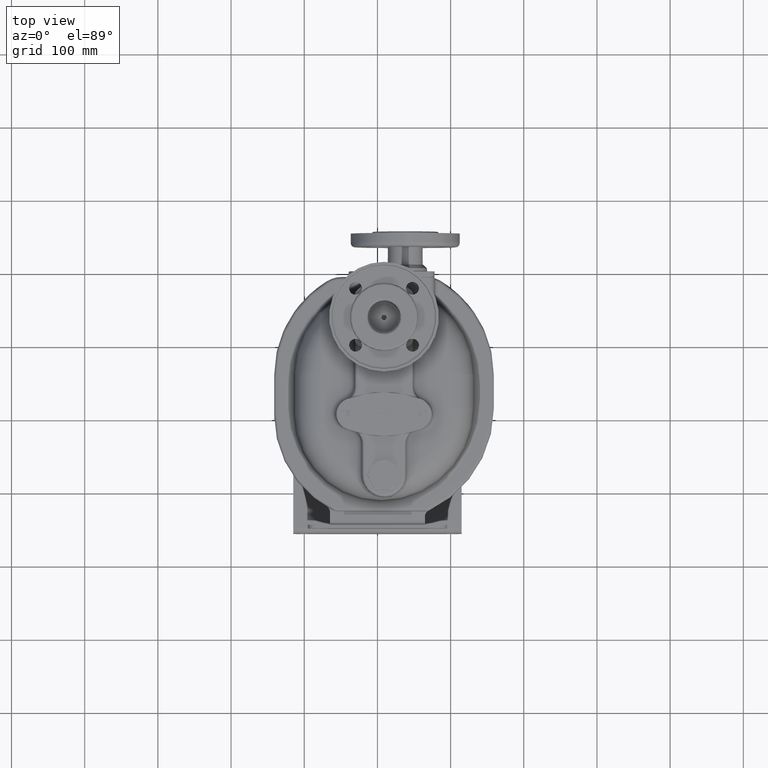
[diagram: clean part render]
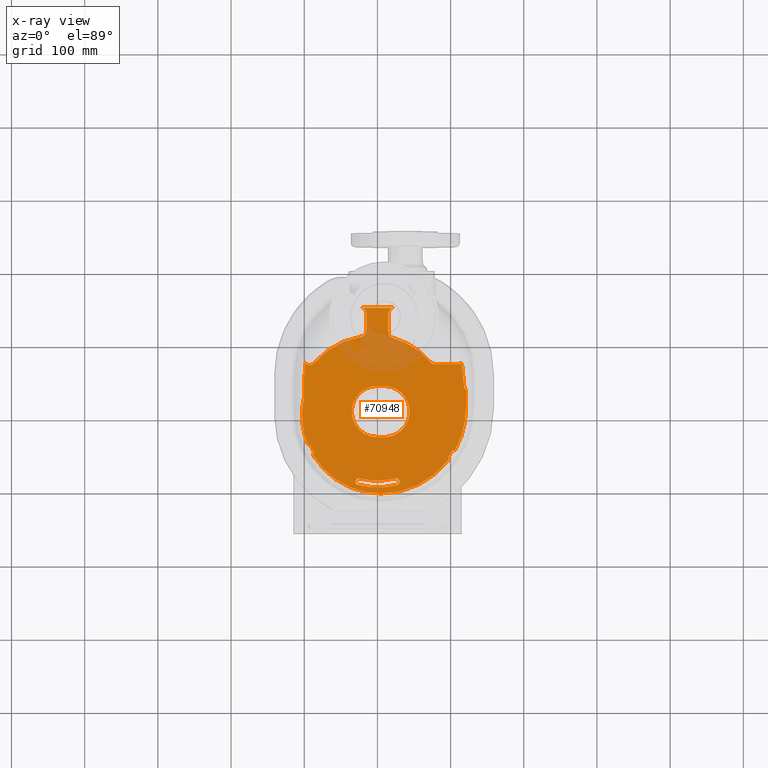
[diagram: x-ray — body ghosted, one internal face saturated and labeled with its STEP entity id]
A machine part, top view, then the same camera in x-ray: the body is ghosted and one INTERNAL B-rep face — a face not visible from any outside direction — is saturated and labeled: STEP entity #70948.
In plain terms, the highlighted planar face has unit normal (0, 0, -1).
Its self-contained STEP definition (entity closure, byte-faithful):
#12166=DIRECTION('',(-1.E0,0.E0,0.E0));
#12167=VECTOR('',#12166,4.6E1);
#12168=CARTESIAN_POINT('',(2.3E1,1.42E2,-1.5E0));
#12169=LINE('',#12168,#12167);
#12273=CARTESIAN_POINT('',(-9.273937336897E1,7.156617505470E1,-1.5E0));
#12274=DIRECTION('',(0.E0,0.E0,1.E0));
#12275=DIRECTION('',(-7.701488054631E-1,-6.378642625542E-1,0.E0));
#12276=AXIS2_PLACEMENT_3D('',#12273,#12274,#12275);
#12278=CARTESIAN_POINT('',(-4.5E0,-4.5E0,-1.5E0));
#12279=DIRECTION('',(0.E0,0.E0,-1.E0));
#12280=DIRECTION('',(-7.574195138967E-1,6.529285412420E-1,0.E0));
#12281=AXIS2_PLACEMENT_3D('',#12278,#12279,#12280);
#12283=CARTESIAN_POINT('',(-2.3E1,1.105217370761E2,-1.5E0));
#12284=DIRECTION('',(0.E0,0.E0,1.E0));
#12285=DIRECTION('',(1.587982832618E-1,-9.873110478634E-1,0.E0));
#12286=AXIS2_PLACEMENT_3D('',#12283,#12284,#12285);
#12288=DIRECTION('',(0.E0,1.E0,0.E0));
#12289=VECTOR('',#12288,2.347826292391E1);
#12290=CARTESIAN_POINT('',(-1.5E1,1.105217370761E2,-1.5E0));
#12291=LINE('',#12290,#12289);
#12292=CARTESIAN_POINT('',(-2.3E1,1.34E2,-1.5E0));
#12293=DIRECTION('',(0.E0,0.E0,1.E0));
#12294=DIRECTION('',(1.E0,-1.065814103640E-14,0.E0));
#12295=AXIS2_PLACEMENT_3D('',#12292,#12293,#12294);
#12297=CARTESIAN_POINT('',(2.3E1,1.34E2,-1.5E0));
#12298=DIRECTION('',(0.E0,0.E0,1.E0));
#12299=DIRECTION('',(0.E0,1.E0,0.E0));
#12300=AXIS2_PLACEMENT_3D('',#12297,#12298,#12299);
#12302=DIRECTION('',(0.E0,-1.E0,0.E0));
#12303=VECTOR('',#12302,2.557695154587E1);
#12304=CARTESIAN_POINT('',(1.5E1,1.34E2,-1.5E0));
#12305=LINE('',#12304,#12303);
#12306=CARTESIAN_POINT('',(2.3E1,1.084230484541E2,-1.5E0));
#12307=DIRECTION('',(0.E0,0.E0,1.E0));
#12308=DIRECTION('',(-1.E0,-1.953992523340E-14,0.E0));
#12309=AXIS2_PLACEMENT_3D('',#12306,#12307,#12308);
#12311=CARTESIAN_POINT('',(-4.5E0,4.5E0,-1.5E0));
#12312=DIRECTION('',(0.E0,0.E0,-1.E0));
#12313=DIRECTION('',(2.558139534884E-1,9.667260321315E-1,0.E0));
#12314=AXIS2_PLACEMENT_3D('',#12311,#12312,#12313);
#12316=CARTESIAN_POINT('',(7.834926070883E1,7.3E1,-1.5E0));
#12317=DIRECTION('',(0.E0,0.E0,1.E0));
#12318=DIRECTION('',(-7.706907972915E-1,-6.372093023256E-1,0.E0));
#12319=AXIS2_PLACEMENT_3D('',#12316,#12317,#12318);
#12321=DIRECTION('',(1.E0,0.E0,0.E0));
#12322=VECTOR('',#12321,3.207558831743E1);
#12323=CARTESIAN_POINT('',(7.834926070883E1,6.5E1,-1.5E0));
#12324=LINE('',#12323,#12322);
#12325=CARTESIAN_POINT('',(1.104248490263E2,7.3E1,-1.5E0));
#12326=DIRECTION('',(0.E0,0.E0,1.E0));
#12327=DIRECTION('',(0.E0,-1.E0,0.E0));
#12328=AXIS2_PLACEMENT_3D('',#12325,#12326,#12327);
#12330=CARTESIAN_POINT('',(9.E0,5.E1,-1.5E0));
#12331=DIRECTION('',(0.E0,0.E0,1.E0));
#12332=DIRECTION('',(9.752389329448E-1,2.211538461538E-1,0.E0));
#12333=AXIS2_PLACEMENT_3D('',#12330,#12331,#12332);
#12335=CARTESIAN_POINT('',(2.55E1,-9.565955258102E1,-1.5E0));
#12336=DIRECTION('',(0.E0,0.E0,-1.E0));
#12337=DIRECTION('',(-2.575757575753E-1,9.662581068791E-1,0.E0));
#12338=AXIS2_PLACEMENT_3D('',#12335,#12336,#12337);
#12340=CARTESIAN_POINT('',(0.E0,0.E0,-1.5E0));
#12341=DIRECTION('',(0.E0,0.E0,-1.E0));
#12342=DIRECTION('',(2.575757575758E-1,-9.662581068789E-1,0.E0));
#12343=AXIS2_PLACEMENT_3D('',#12340,#12341,#12342);
#12345=CARTESIAN_POINT('',(-2.55E1,-9.565955258102E1,-1.5E0));
#12346=DIRECTION('',(0.E0,0.E0,-1.E0));
#12347=DIRECTION('',(-2.575757575757E-1,-9.662581068789E-1,0.E0));
#12348=AXIS2_PLACEMENT_3D('',#12345,#12346,#12347);
#12350=CARTESIAN_POINT('',(0.E0,0.E0,-1.5E0));
#12351=DIRECTION('',(0.E0,0.E0,-1.E0));
#12352=DIRECTION('',(2.575757575758E-1,-9.662581068789E-1,0.E0));
#12353=AXIS2_PLACEMENT_3D('',#12350,#12351,#12352);
#12355=DIRECTION('',(0.E0,-1.E0,0.E0));
#12356=VECTOR('',#12355,2.4E1);
#12357=CARTESIAN_POINT('',(1.21E2,2.85E1,-1.5E0));
#12358=LINE('',#12357,#12356);
#12371=CARTESIAN_POINT('',(1.17E2,2.85E1,-1.5E0));
#12372=DIRECTION('',(0.E0,0.E0,-1.E0));
#12373=DIRECTION('',(4.484378720802E-1,8.938140046364E-1,0.E0));
#12374=AXIS2_PLACEMENT_3D('',#12371,#12372,#12373);
#12384=DIRECTION('',(-5.759201016436E-2,9.983402027191E-1,0.E0));
#12385=VECTOR('',#12384,3.603556230667E1);
#12386=CARTESIAN_POINT('',(1.187937514883E2,3.207525601855E1,-1.5E0));
#12387=LINE('',#12386,#12385);
#12388=CARTESIAN_POINT('',(1.104328946732E2,7.3E1,-1.5E0));
#12389=DIRECTION('',(0.E0,0.E0,-1.E0));
#12390=DIRECTION('',(9.640516425202E-1,2.657149422862E-1,0.E0));
#12391=AXIS2_PLACEMENT_3D('',#12388,#12389,#12390);
#22625=DIRECTION('',(-3.157217288341E-2,-9.995014746860E-1,0.E0));
#22626=VECTOR('',#22625,4.866389729133E1);
#22627=CARTESIAN_POINT('',(-9.890056381267E1,6.646326095426E1,-1.5E0));
#22628=LINE('',#22627,#22626);
#22629=CARTESIAN_POINT('',(-4.5E0,-4.5E0,-1.5E0));
#22630=DIRECTION('',(0.E0,0.E0,-1.E0));
#22631=DIRECTION('',(-1.E0,0.E0,0.E0));
#22632=AXIS2_PLACEMENT_3D('',#22629,#22630,#22631);
#22638=CARTESIAN_POINT('',(4.5E0,-4.5E0,-1.5E0));
#22639=DIRECTION('',(0.E0,0.E0,-1.E0));
#22640=DIRECTION('',(0.E0,-1.E0,0.E0));
#22641=AXIS2_PLACEMENT_3D('',#22638,#22639,#22640);
#22652=CARTESIAN_POINT('',(4.5E0,-4.5E0,-1.5E0));
#22653=DIRECTION('',(0.E0,0.E0,-1.E0));
#22654=DIRECTION('',(-9.298754007984E-1,-3.678746240095E-1,0.E0));
#22655=AXIS2_PLACEMENT_3D('',#22652,#22653,#22654);
#22670=CARTESIAN_POINT('',(4.5E0,4.5E0,-1.5E0));
#22671=DIRECTION('',(0.E0,0.E0,-1.E0));
#22672=DIRECTION('',(1.E0,0.E0,0.E0));
#22673=AXIS2_PLACEMENT_3D('',#22670,#22671,#22672);
#22688=CARTESIAN_POINT('',(4.5E0,4.5E0,-1.5E0));
#22689=DIRECTION('',(0.E0,0.E0,-1.E0));
#22690=DIRECTION('',(7.908192518570E-1,-6.120497617779E-1,0.E0));
#22691=AXIS2_PLACEMENT_3D('',#22688,#22689,#22690);
#22716=CARTESIAN_POINT('',(9.346716583391E1,-6.435559820001E1,-1.5E0));
#22717=DIRECTION('',(0.E0,0.E0,1.E0));
#22718=DIRECTION('',(7.908192518570E-1,-6.120497617779E-1,0.E0));
#22719=AXIS2_PLACEMENT_3D('',#22716,#22717,#22718);
#22730=DIRECTION('',(5.E-1,8.660254037844E-1,0.E0));
#22731=VECTOR('',#22730,1.068662492356E1);
#22732=CARTESIAN_POINT('',(9.694528306250E1,-6.238007281567E1,-1.5E0));
#22733=LINE('',#22732,#22731);
#22734=CARTESIAN_POINT('',(1.033229688702E2,-4.926123904526E1,-1.5E0));
#22735=DIRECTION('',(0.E0,0.E0,-1.E0));
#22736=DIRECTION('',(8.784263899572E-1,-4.778776804023E-1,0.E0));
#22737=AXIS2_PLACEMENT_3D('',#22734,#22735,#22736);
#22752=CARTESIAN_POINT('',(-9.174210398263E1,-4.257502358498E1,-1.5E0));
#22753=DIRECTION('',(0.E0,0.E0,1.E0));
#22754=DIRECTION('',(-9.298754007983E-1,-3.678746240095E-1,0.E0));
#22755=AXIS2_PLACEMENT_3D('',#22752,#22753,#22754);
#22766=DIRECTION('',(5.E-1,-8.660254037844E-1,0.E0));
#22767=VECTOR('',#22766,1.074188831094E1);
#22768=CARTESIAN_POINT('',(-9.187546393754E1,-4.657279985716E1,-1.5E0));
#22769=LINE('',#22768,#22767);
#22770=CARTESIAN_POINT('',(-8.367312904622E1,-5.870100842419E1,-1.5E0));
#22771=DIRECTION('',(0.E0,0.E0,-1.E0));
#22772=DIRECTION('',(-8.519142903016E-1,-5.236812408135E-1,0.E0));
#22773=AXIS2_PLACEMENT_3D('',#22770,#22771,#22772);
#23139=DIRECTION('',(1.E0,0.E0,0.E0));
#23140=VECTOR('',#23139,9.E0);
#23141=CARTESIAN_POINT('',(0.E0,3.496862696660E1,-1.5E0));
#23142=LINE('',#23141,#23140);
#23148=CARTESIAN_POINT('',(9.E0,0.E0,-1.5E0));
#23149=DIRECTION('',(0.E0,0.E0,-1.E0));
#23150=DIRECTION('',(-1.371561849129E-14,1.E0,0.E0));
#23151=AXIS2_PLACEMENT_3D('',#23148,#23149,#23150);
#23158=CARTESIAN_POINT('',(9.E0,1.05E2,-1.5E0));
#23159=DIRECTION('',(0.E0,0.E0,-1.E0));
#23160=DIRECTION('',(-1.844017865707E-14,-1.E0,0.E0));
#23161=AXIS2_PLACEMENT_3D('',#23158,#23159,#23160);
#23173=CARTESIAN_POINT('',(-5.906154188144E0,-1.910804392673E1,-1.5E0));
#23174=DIRECTION('',(0.E0,0.E0,1.E0));
#23175=DIRECTION('',(-2.953077094072E-1,-9.554021963365E-1,0.E0));
#23176=AXIS2_PLACEMENT_3D('',#23173,#23174,#23175);
#23183=CARTESIAN_POINT('',(0.E0,0.E0,-1.5E0));
#23184=DIRECTION('',(0.E0,0.E0,-1.E0));
#23185=DIRECTION('',(-2.953077094072E-1,-9.554021963365E-1,0.E0));
#23186=AXIS2_PLACEMENT_3D('',#23183,#23184,#23185);
#47932=CARTESIAN_POINT('',(1.104248490263E2,6.5E1,-1.5E0));
#47933=CARTESIAN_POINT('',(1.182267604898E2,7.476923076923E1,-1.5E0));
#47934=VERTEX_POINT('',#47932);
#47935=VERTEX_POINT('',#47933);
#47936=CARTESIAN_POINT('',(7.834926070883E1,6.5E1,-1.5E0));
#47937=VERTEX_POINT('',#47936);
#47938=CARTESIAN_POINT('',(7.218373433050E1,6.790232558140E1,-1.5E0));
#47939=VERTEX_POINT('',#47938);
#47940=CARTESIAN_POINT('',(1.5E1,1.084230484541E2,-1.5E0));
#47941=CARTESIAN_POINT('',(2.095348837209E1,1.006892401971E2,-1.5E0));
#47942=VERTEX_POINT('',#47940);
#47943=VERTEX_POINT('',#47941);
#47944=CARTESIAN_POINT('',(1.5E1,1.34E2,-1.5E0));
#47945=VERTEX_POINT('',#47944);
#47946=CARTESIAN_POINT('',(-1.5E1,1.105217370761E2,-1.5E0));
#47947=CARTESIAN_POINT('',(-1.5E1,1.34E2,-1.5E0));
#47948=VERTEX_POINT('',#47946);
#47949=VERTEX_POINT('',#47947);
#47950=CARTESIAN_POINT('',(-2.172961373391E1,1.026232486932E2,-1.5E0));
#47951=VERTEX_POINT('',#47950);
#48030=CARTESIAN_POINT('',(2.434090909091E1,-9.131139110006E1,-1.5E0));
#48032=VERTEX_POINT('',#48030);
#48034=CARTESIAN_POINT('',(2.665909090909E1,-1.000077140620E2,-1.5E0));
#48036=VERTEX_POINT('',#48034);
#48038=CARTESIAN_POINT('',(-2.665909090909E1,-1.000077140620E2,-1.5E0));
#48040=VERTEX_POINT('',#48038);
#48042=CARTESIAN_POINT('',(-2.434090909091E1,-9.131139110006E1,-1.5E0));
#48044=VERTEX_POINT('',#48042);
#48062=CARTESIAN_POINT('',(-8.668001725779E1,6.634274672476E1,-1.5E0));
#48063=VERTEX_POINT('',#48062);
#48101=CARTESIAN_POINT('',(1.21E2,2.85E1,-1.5E0));
#48102=CARTESIAN_POINT('',(1.21E2,4.5E0,-1.5E0));
#48103=VERTEX_POINT('',#48101);
#48104=VERTEX_POINT('',#48102);
#48105=CARTESIAN_POINT('',(1.068366744300E2,-5.117274976687E1,-1.5E0));
#48106=VERTEX_POINT('',#48105);
#48107=CARTESIAN_POINT('',(9.663044284134E1,-6.680379724712E1,-1.5E0));
#48108=CARTESIAN_POINT('',(4.5E0,-1.12E2,-1.5E0));
#48109=VERTEX_POINT('',#48107);
#48110=VERTEX_POINT('',#48108);
#48111=CARTESIAN_POINT('',(-8.708078620743E1,-6.079573338744E1,-1.5E0));
#48112=VERTEX_POINT('',#48111);
#48113=CARTESIAN_POINT('',(-9.546160558582E1,-4.404652208102E1,-1.5E0));
#48114=CARTESIAN_POINT('',(-1.03E2,-4.5E0,-1.5E0));
#48115=VERTEX_POINT('',#48113);
#48116=VERTEX_POINT('',#48114);
#48117=CARTESIAN_POINT('',(-1.032650513062E1,-3.340910300676E1,-1.5E0));
#48118=CARTESIAN_POINT('',(0.E0,3.496862696660E1,-1.5E0));
#48119=VERTEX_POINT('',#48117);
#48120=VERTEX_POINT('',#48118);
#48121=CARTESIAN_POINT('',(9.E0,3.496862696660E1,-1.5E0));
#48122=VERTEX_POINT('',#48121);
#48123=CARTESIAN_POINT('',(8.999999999997E0,-3.496862696660E1,-1.5E0));
#48124=VERTEX_POINT('',#48123);
#48125=CARTESIAN_POINT('',(-7.691151480537E0,-3.396986003148E1,-1.5E0));
#48126=VERTEX_POINT('',#48125);
#48127=CARTESIAN_POINT('',(1.181453078134E2,7.512571953829E1,-1.5E0));
#48128=CARTESIAN_POINT('',(1.167183910177E2,6.805100659688E1,-1.5E0));
#48129=VERTEX_POINT('',#48127);
#48130=VERTEX_POINT('',#48128);
#48131=CARTESIAN_POINT('',(1.187937514883E2,3.207525601855E1,-1.5E0));
#48132=VERTEX_POINT('',#48131);
#48133=CARTESIAN_POINT('',(-1.004369887911E2,1.782362384761E1,-1.5E0));
#48134=VERTEX_POINT('',#48133);
#48135=CARTESIAN_POINT('',(-9.890056381267E1,6.646326095426E1,-1.5E0));
#48136=VERTEX_POINT('',#48135);
#48137=CARTESIAN_POINT('',(2.3E1,1.42E2,-1.5E0));
#48138=CARTESIAN_POINT('',(-2.3E1,1.42E2,-1.5E0));
#48139=VERTEX_POINT('',#48137);
#48140=VERTEX_POINT('',#48138);
#48141=CARTESIAN_POINT('',(-9.187546393754E1,-4.657279985716E1,-1.5E0));
#48142=CARTESIAN_POINT('',(-8.650451978207E1,-5.587554801905E1,-1.5E0));
#48143=VERTEX_POINT('',#48141);
#48144=VERTEX_POINT('',#48142);
#48145=CARTESIAN_POINT('',(9.694528306250E1,-6.238007281567E1,-1.5E0));
#48146=CARTESIAN_POINT('',(1.022885955243E2,-5.312518415114E1,-1.5E0));
#48147=VERTEX_POINT('',#48145);
#48148=VERTEX_POINT('',#48146);
#70862=CARTESIAN_POINT('',(1.065814491317E-14,0.E0,-1.5E0));
#70863=DIRECTION('',(0.E0,0.E0,-1.E0));
#70864=DIRECTION('',(-1.E0,0.E0,0.E0));
#70865=AXIS2_PLACEMENT_3D('',#70862,#70863,#70864);
#70866=PLANE('',#70865);
#70868=ORIENTED_EDGE('',*,*,#70867,.T.);
#70870=ORIENTED_EDGE('',*,*,#70869,.T.);
#70872=ORIENTED_EDGE('',*,*,#70871,.T.);
#70874=ORIENTED_EDGE('',*,*,#70873,.F.);
#70876=ORIENTED_EDGE('',*,*,#70875,.F.);
#70878=ORIENTED_EDGE('',*,*,#70877,.T.);
#70880=ORIENTED_EDGE('',*,*,#70879,.T.);
#70882=ORIENTED_EDGE('',*,*,#70881,.T.);
#70884=ORIENTED_EDGE('',*,*,#70883,.F.);
#70886=ORIENTED_EDGE('',*,*,#70885,.F.);
#70888=ORIENTED_EDGE('',*,*,#70887,.T.);
#70890=ORIENTED_EDGE('',*,*,#70889,.T.);
#70892=ORIENTED_EDGE('',*,*,#70891,.F.);
#70894=ORIENTED_EDGE('',*,*,#70893,.T.);
#70896=ORIENTED_EDGE('',*,*,#70895,.T.);
#70898=ORIENTED_EDGE('',*,*,#70897,.T.);
#70900=ORIENTED_EDGE('',*,*,#70899,.T.);
#70902=ORIENTED_EDGE('',*,*,#70901,.T.);
#70903=ORIENTED_EDGE('',*,*,#70784,.F.);
#70905=ORIENTED_EDGE('',*,*,#70904,.T.);
#70907=ORIENTED_EDGE('',*,*,#70906,.T.);
#70909=ORIENTED_EDGE('',*,*,#70908,.T.);
#70911=ORIENTED_EDGE('',*,*,#70910,.T.);
#70913=ORIENTED_EDGE('',*,*,#70912,.T.);
#70915=ORIENTED_EDGE('',*,*,#70914,.T.);
#70916=ORIENTED_EDGE('',*,*,#70851,.T.);
#70917=ORIENTED_EDGE('',*,*,#70840,.T.);
#70919=ORIENTED_EDGE('',*,*,#70918,.T.);
#70921=ORIENTED_EDGE('',*,*,#70920,.F.);
#70923=ORIENTED_EDGE('',*,*,#70922,.T.);
#70924=EDGE_LOOP('',(#70868,#70870,#70872,#70874,#70876,#70878,#70880,#70882,
#70884,#70886,#70888,#70890,#70892,#70894,#70896,#70898,#70900,#70902,#70903,
#70905,#70907,#70909,#70911,#70913,#70915,#70916,#70917,#70919,#70921,#70923));
#70925=FACE_OUTER_BOUND('',#70924,.F.);
#70927=ORIENTED_EDGE('',*,*,#70926,.F.);
#70929=ORIENTED_EDGE('',*,*,#70928,.T.);
#70931=ORIENTED_EDGE('',*,*,#70930,.F.);
#70933=ORIENTED_EDGE('',*,*,#70932,.F.);
#70934=EDGE_LOOP('',(#70927,#70929,#70931,#70933));
#70935=FACE_BOUND('',#70934,.F.);
#70937=ORIENTED_EDGE('',*,*,#70936,.F.);
#70939=ORIENTED_EDGE('',*,*,#70938,.T.);
#70941=ORIENTED_EDGE('',*,*,#70940,.F.);
#70943=ORIENTED_EDGE('',*,*,#70942,.F.);
#70945=ORIENTED_EDGE('',*,*,#70944,.F.);
#70946=EDGE_LOOP('',(#70937,#70939,#70941,#70943,#70945));
#70947=FACE_BOUND('',#70946,.F.);
#70948=ADVANCED_FACE('',(#70925,#70935,#70947),#70866,.F.);
#12277=CIRCLE('',#12276,8.E0);
#12282=CIRCLE('',#12281,1.085E2);
#12287=CIRCLE('',#12286,8.E0);
#12296=CIRCLE('',#12295,8.E0);
#12301=CIRCLE('',#12300,8.E0);
#12310=CIRCLE('',#12309,8.E0);
#12315=CIRCLE('',#12314,9.95E1);
#12320=CIRCLE('',#12319,8.E0);
#12329=CIRCLE('',#12328,8.E0);
#12334=CIRCLE('',#12333,1.12E2);
#12339=CIRCLE('',#12338,4.5E0);
#12344=CIRCLE('',#12343,9.45E1);
#12349=CIRCLE('',#12348,4.5E0);
#12354=CIRCLE('',#12353,1.035E2);
#12375=CIRCLE('',#12374,4.E0);
#12392=CIRCLE('',#12391,8.E0);
#22633=CIRCLE('',#22632,9.85E1);
#22642=CIRCLE('',#22641,1.075E2);
#22656=CIRCLE('',#22655,1.075E2);
#22674=CIRCLE('',#22673,1.165E2);
#22692=CIRCLE('',#22691,1.165E2);
#22720=CIRCLE('',#22719,4.E0);
#22738=CIRCLE('',#22737,4.E0);
#22756=CIRCLE('',#22755,4.E0);
#22774=CIRCLE('',#22773,4.E0);
#23152=CIRCLE('',#23151,3.496862696660E1);
#23162=CIRCLE('',#23161,1.399686269666E2);
#23177=CIRCLE('',#23176,1.496862696660E1);
#23187=CIRCLE('',#23186,3.496862696660E1);
#70784=EDGE_CURVE('',#48139,#48140,#12169,.T.);
#70840=EDGE_CURVE('',#47935,#48129,#12334,.T.);
#70851=EDGE_CURVE('',#47934,#47935,#12329,.T.);
#70867=EDGE_CURVE('',#48103,#48104,#12358,.T.);
#70869=EDGE_CURVE('',#48104,#48106,#22674,.T.);
#70871=EDGE_CURVE('',#48106,#48148,#22738,.T.);
#70873=EDGE_CURVE('',#48147,#48148,#22733,.T.);
#70875=EDGE_CURVE('',#48109,#48147,#22720,.T.);
#70877=EDGE_CURVE('',#48109,#48110,#22692,.T.);
#70879=EDGE_CURVE('',#48110,#48112,#22642,.T.);
#70881=EDGE_CURVE('',#48112,#48144,#22774,.T.);
#70883=EDGE_CURVE('',#48143,#48144,#22769,.T.);
#70885=EDGE_CURVE('',#48115,#48143,#22756,.T.);
#70887=EDGE_CURVE('',#48115,#48116,#22656,.T.);
#70889=EDGE_CURVE('',#48116,#48134,#22633,.T.);
#70891=EDGE_CURVE('',#48136,#48134,#22628,.T.);
#70893=EDGE_CURVE('',#48136,#48063,#12277,.T.);
#70895=EDGE_CURVE('',#48063,#47951,#12282,.T.);
#70897=EDGE_CURVE('',#47951,#47948,#12287,.T.);
#70899=EDGE_CURVE('',#47948,#47949,#12291,.T.);
#70901=EDGE_CURVE('',#47949,#48140,#12296,.T.);
#70904=EDGE_CURVE('',#48139,#47945,#12301,.T.);
#70906=EDGE_CURVE('',#47945,#47942,#12305,.T.);
#70908=EDGE_CURVE('',#47942,#47943,#12310,.T.);
#70910=EDGE_CURVE('',#47943,#47939,#12315,.T.);
#70912=EDGE_CURVE('',#47939,#47937,#12320,.T.);
#70914=EDGE_CURVE('',#47937,#47934,#12324,.T.);
#70918=EDGE_CURVE('',#48129,#48130,#12392,.T.);
#70920=EDGE_CURVE('',#48132,#48130,#12387,.T.);
#70922=EDGE_CURVE('',#48132,#48103,#12375,.T.);
#70926=EDGE_CURVE('',#48032,#48036,#12339,.T.);
#70928=EDGE_CURVE('',#48032,#48044,#12344,.T.);
#70930=EDGE_CURVE('',#48040,#48044,#12349,.T.);
#70932=EDGE_CURVE('',#48036,#48040,#12354,.T.);
#70936=EDGE_CURVE('',#48119,#48120,#23187,.T.);
#70938=EDGE_CURVE('',#48119,#48126,#23177,.T.);
#70940=EDGE_CURVE('',#48124,#48126,#23162,.T.);
#70942=EDGE_CURVE('',#48122,#48124,#23152,.T.);
#70944=EDGE_CURVE('',#48120,#48122,#23142,.T.);